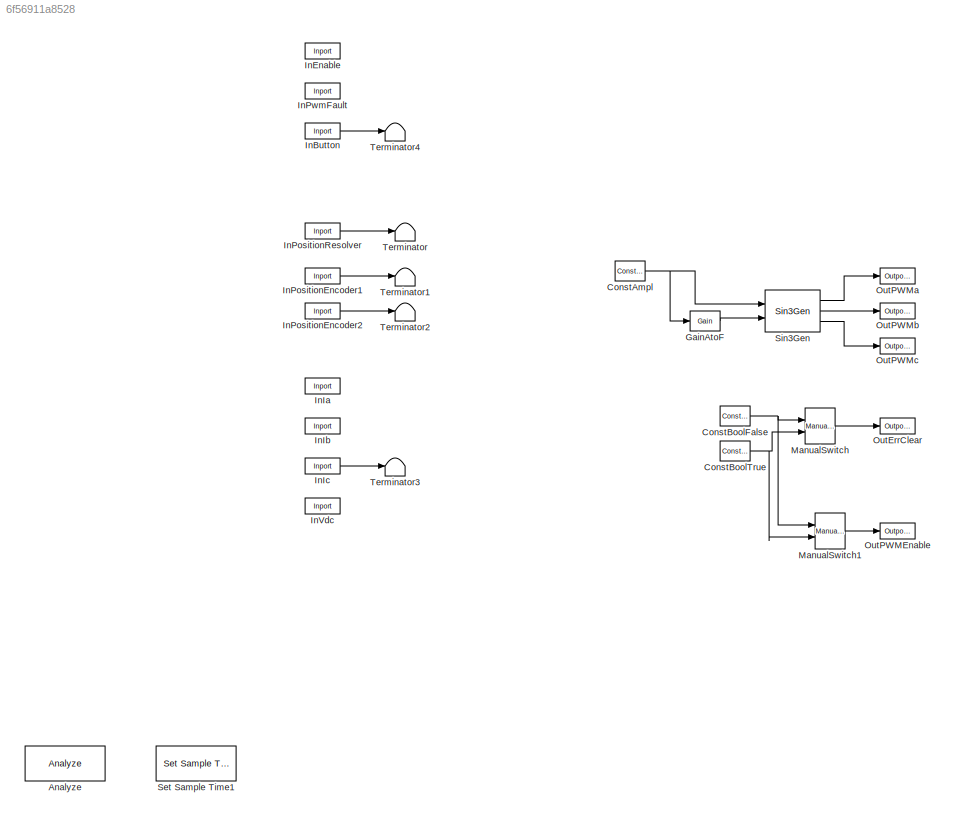
MODEL slx_6f56911a8528
KIND model
CONFIG AbsTol = auto
CONFIG EnableMultiTasking = on
CONFIG FixedStep = auto
CONFIG MaxStep = auto
CONFIG MinStep = auto
CONFIG RelTol = 1e-3
CONFIG SampleTimeConstraint = Unconstrained
CONFIG SolverName = ode45
CONFIG StartTime = 0.0
CONFIG StopTime = 10.0
BLOCK [Reference] Analyze  REF=Basic/Analyze
  Ports = []
  SourceBlock = Basic/Analyze
  SourceProductName = X2C Basic
  SourceType = X2C System Block
BLOCK [Reference] ConstAmpl  REF=General/Constant
  Ports = [0, 1]
  SourceBlock = General/Constant
  SourceProductName = X2C General
  SourceType = X2C - Constant
BLOCK [Reference] ConstBoolFalse  REF=General/Constant
  Ports = [0, 1]
  SourceBlock = General/Constant
  SourceProductName = X2C General
  SourceType = X2C - Constant
BLOCK [Reference] ConstBoolTrue  REF=General/Constant
  Ports = [0, 1]
  SourceBlock = General/Constant
  SourceProductName = X2C General
  SourceType = X2C - Constant
BLOCK [Reference] GainAtoF  REF=General/Gain
  Ports = [1, 1]
  SourceBlock = General/Gain
  SourceProductName = X2C General
  SourceType = X2C - Gain
BLOCK [Reference] InButton  REF=General/Inport
  Ports = [1, 1]
  SourceBlock = General/Inport
  SourceProductName = X2C General
  SourceType = X2C - Inport
BLOCK [Reference] InEnable  REF=General/Inport
  Ports = [1, 1]
  SourceBlock = General/Inport
  SourceProductName = X2C General
  SourceType = X2C - Inport
BLOCK [Reference] InIa  REF=General/Inport
  Ports = [1, 1]
  SourceBlock = General/Inport
  SourceProductName = X2C General
  SourceType = X2C - Inport
BLOCK [Reference] InIb  REF=General/Inport
  Ports = [1, 1]
  SourceBlock = General/Inport
  SourceProductName = X2C General
  SourceType = X2C - Inport
BLOCK [Reference] InIc  REF=General/Inport
  Ports = [1, 1]
  SourceBlock = General/Inport
  SourceProductName = X2C General
  SourceType = X2C - Inport
BLOCK [Reference] InPositionEncoder1  REF=General/Inport
  Ports = [1, 1]
  SourceBlock = General/Inport
  SourceProductName = X2C General
  SourceType = X2C - Inport
BLOCK [Reference] InPositionEncoder2  REF=General/Inport
  Ports = [1, 1]
  SourceBlock = General/Inport
  SourceProductName = X2C General
  SourceType = X2C - Inport
BLOCK [Reference] InPositionResolver  REF=General/Inport
  Ports = [1, 1]
  SourceBlock = General/Inport
  SourceProductName = X2C General
  SourceType = X2C - Inport
BLOCK [Reference] InPwmFault  REF=General/Inport
  Ports = [1, 1]
  SourceBlock = General/Inport
  SourceProductName = X2C General
  SourceType = X2C - Inport
BLOCK [Reference] InVdc  REF=General/Inport
  Ports = [1, 1]
  SourceBlock = General/Inport
  SourceProductName = X2C General
  SourceType = X2C - Inport
BLOCK [Reference] ManualSwitch  REF=General/ManualSwitch
  Ports = [2, 1]
  SourceBlock = General/ManualSwitch
  SourceProductName = X2C General
  SourceType = X2C - ManualSwitch
BLOCK [Reference] ManualSwitch1  REF=General/ManualSwitch
  Ports = [2, 1]
  SourceBlock = General/ManualSwitch
  SourceProductName = X2C General
  SourceType = X2C - ManualSwitch
BLOCK [Reference] OutErrClear  REF=General/Outport
  Ports = [1, 1]
  SourceBlock = General/Outport
  SourceProductName = X2C General
  SourceType = X2C - Outport
BLOCK [Reference] OutPWMEnable  REF=General/Outport
  Ports = [1, 1]
  SourceBlock = General/Outport
  SourceProductName = X2C General
  SourceType = X2C - Outport
BLOCK [Reference] OutPWMa  REF=General/Outport
  Ports = [1, 1]
  SourceBlock = General/Outport
  SourceProductName = X2C General
  SourceType = X2C - Outport
BLOCK [Reference] OutPWMb  REF=General/Outport
  Ports = [1, 1]
  SourceBlock = General/Outport
  SourceProductName = X2C General
  SourceType = X2C - Outport
BLOCK [Reference] OutPWMc  REF=General/Outport
  Ports = [1, 1]
  SourceBlock = General/Outport
  SourceProductName = X2C General
  SourceType = X2C - Outport
BLOCK [Reference] Set Sample Time1  REF=Basic/Set Sample Time
  Ports = []
  SourceBlock = Basic/Set Sample Time
  SourceProductName = X2C Basic
  SourceType = X2C System Block
BLOCK [Reference] Sin3Gen  REF=General/Sin3Gen
  Ports = [2, 3]
  SourceBlock = General/Sin3Gen
  SourceProductName = X2C General
  SourceType = X2C - Sin3Gen
BLOCK [Terminator] Terminator
BLOCK [Terminator] Terminator1
BLOCK [Terminator] Terminator2
BLOCK [Terminator] Terminator3
BLOCK [Terminator] Terminator4
NET ConstAmpl:1 -> GainAtoF:1, Sin3Gen:1
NET ConstBoolFalse:1 -> ManualSwitch1:1, ManualSwitch:1
NET ConstBoolTrue:1 -> ManualSwitch1:2, ManualSwitch:2
LINE GainAtoF:1 -> Sin3Gen:2
LINE InButton:1 -> Terminator4:1
LINE InIc:1 -> Terminator3:1
LINE InPositionEncoder1:1 -> Terminator1:1
LINE InPositionEncoder2:1 -> Terminator2:1
LINE InPositionResolver:1 -> Terminator:1
LINE ManualSwitch1:1 -> OutPWMEnable:1
LINE ManualSwitch:1 -> OutErrClear:1
LINE Sin3Gen:1 -> OutPWMa:1
LINE Sin3Gen:2 -> OutPWMb:1
LINE Sin3Gen:3 -> OutPWMc:1
note: NET lines group one-source signal fan-out (src -> all destinations, sorted); 1:1 wires keep LINE
